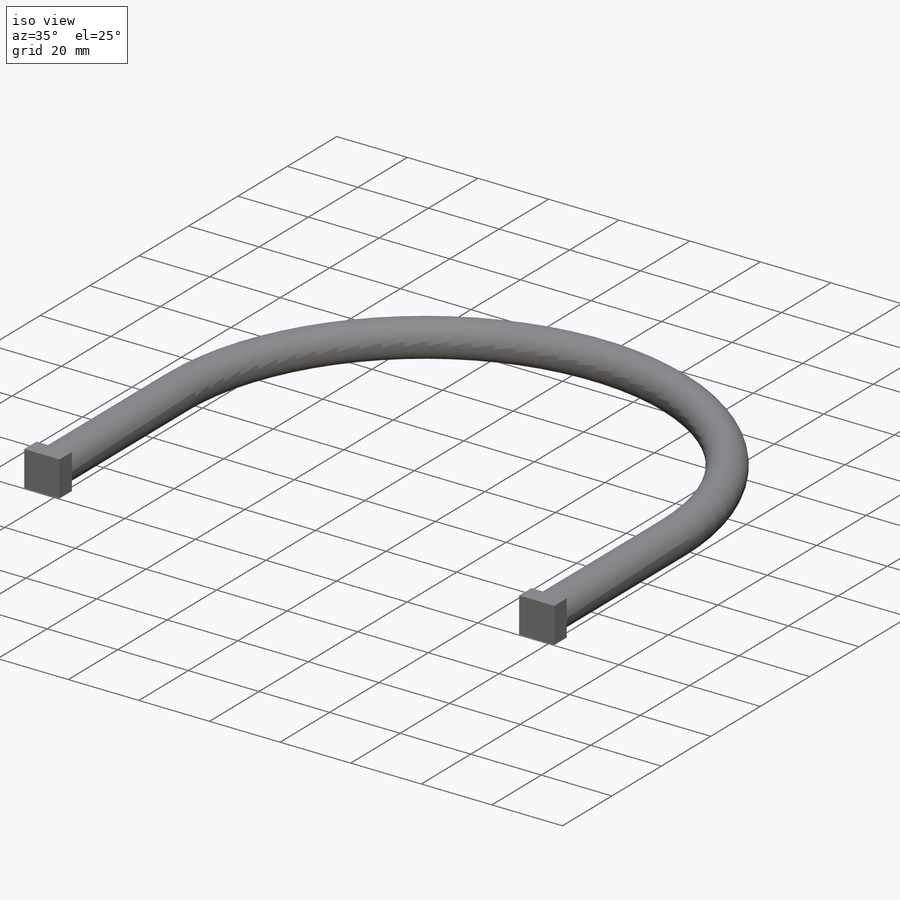
[diagram: iso view]
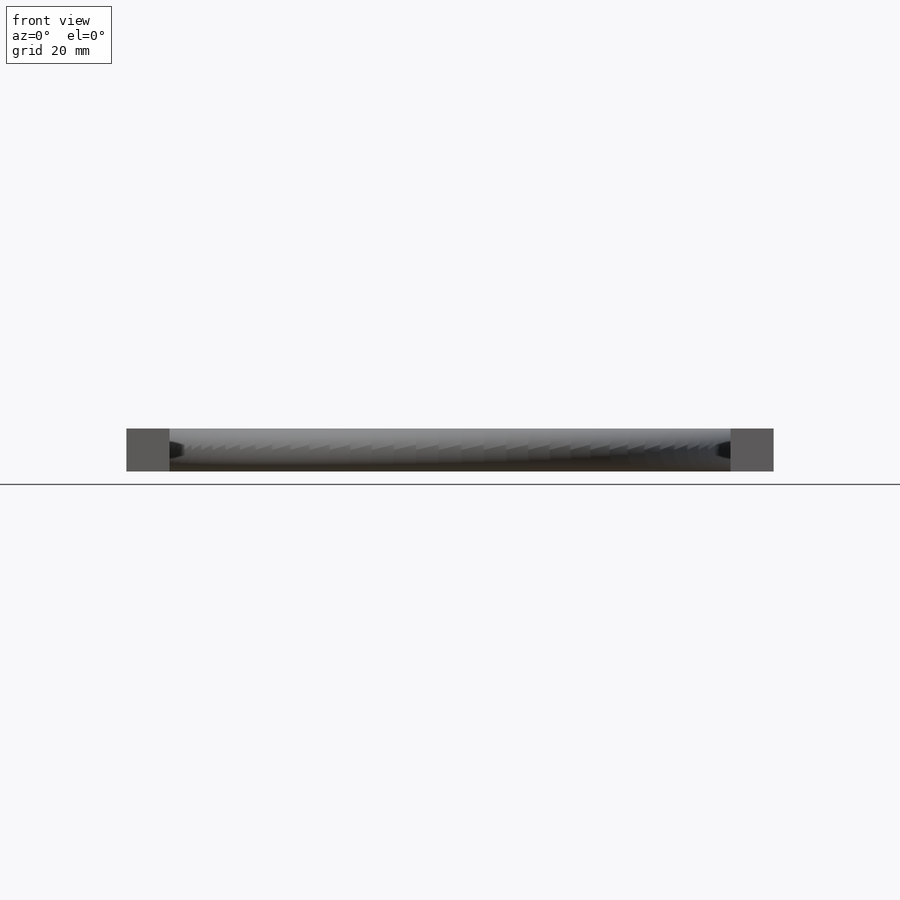
[diagram: front view]
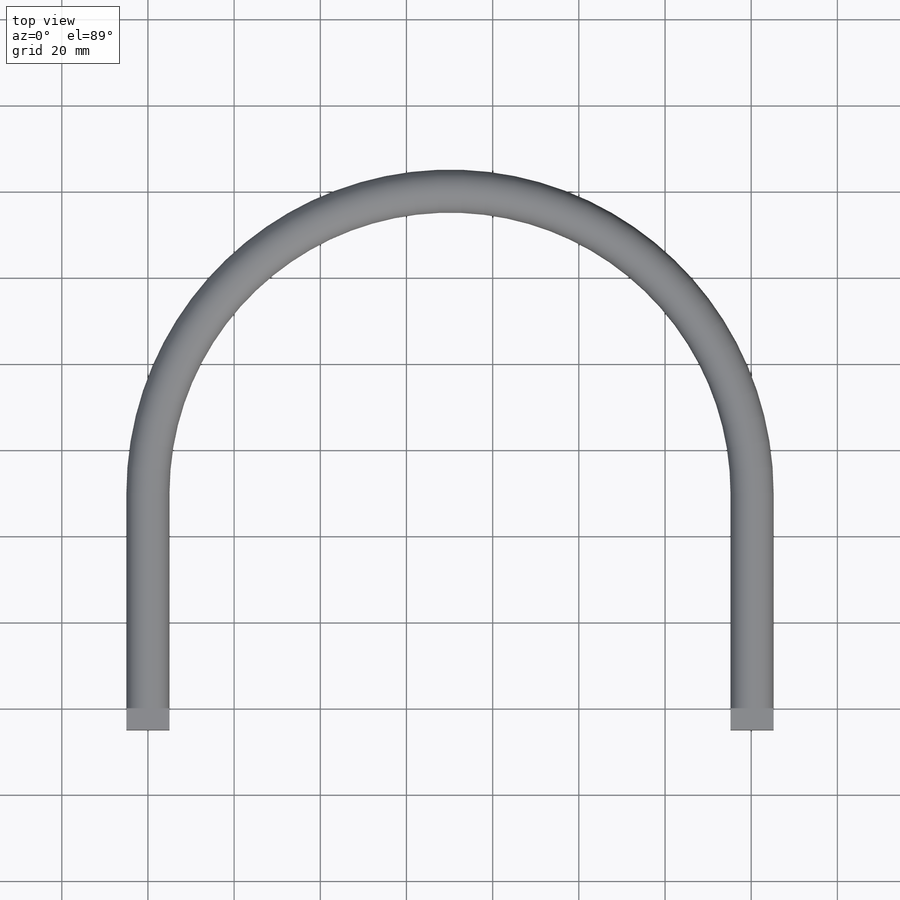
[diagram: top view]
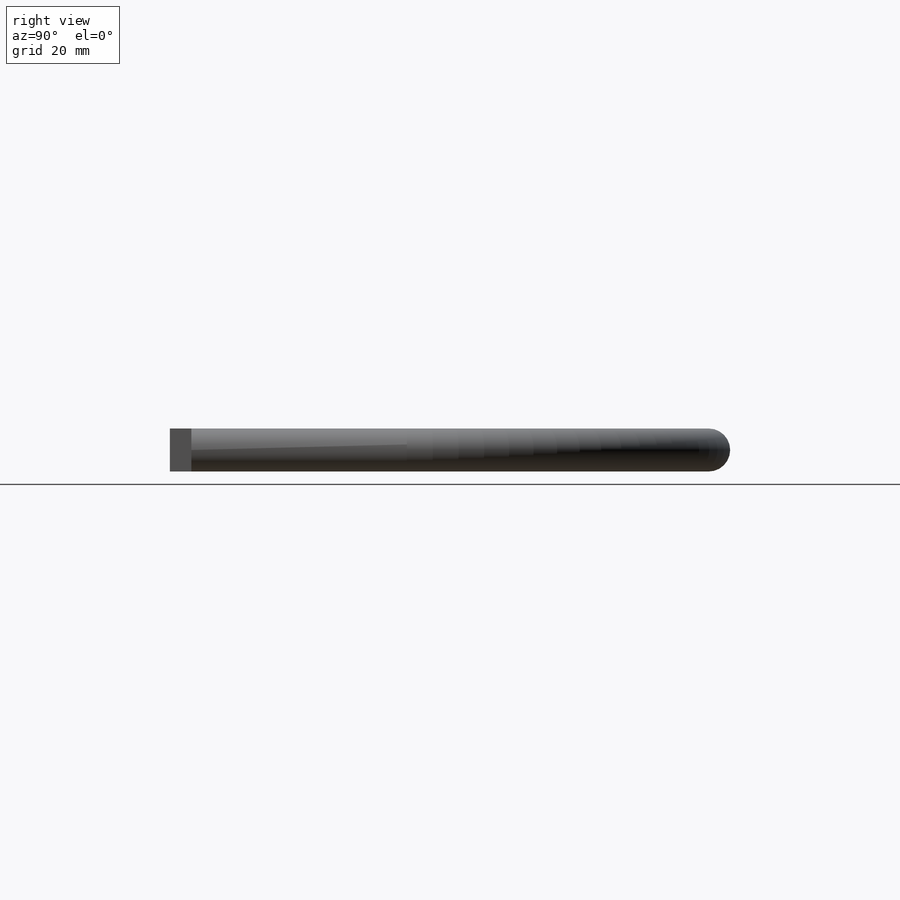
[diagram: right view]
SOLIDWORKS PART (.sldprt)
format: sldprt  version: not decoded by parser v0  size: 199,680 bytes
history: native  units: mm
features: sketch x4, extrude x2, material x1, sweep x1 (+12 scaffold rows collapsed)
feature tree (20):
  scaffold x12  (default folders/planes/origin — collapsed)
  material  "Material <not specified>"
  sketch  "Sketch6"  dims[D1=10.0mm]
  sketch  "Sketch7"  dims[c1.D1=~87.882052mm c1.D2=100.85mm c2.D1=140.2mm c2.D2=50.0mm c2.D3=50.0mm]
  sweep  "Sweep1"
  sketch  "Sketch8"  dims[c1.D1=5.0mm c1.D2=5.0mm c1.D3=~10.529836mm c2.D3=90.0deg c3.D3=5.0mm c3.D4=5.0mm]
  extrude  "Boss-Extrude1"  Depth=5mm
  sketch  "Sketch9"  dims[c1.D1=~31.590926mm c1.D2=~31.792575mm c2.D1=5.0mm]
  extrude  "Boss-Extrude2"  Depth=5mm
decode coverage: 6 of 7 modeling features carry decoded parameters
note: ~ marks probable driven/reference dimensions
note: suppression state not decoded; provenance and decode notes live in map.json
